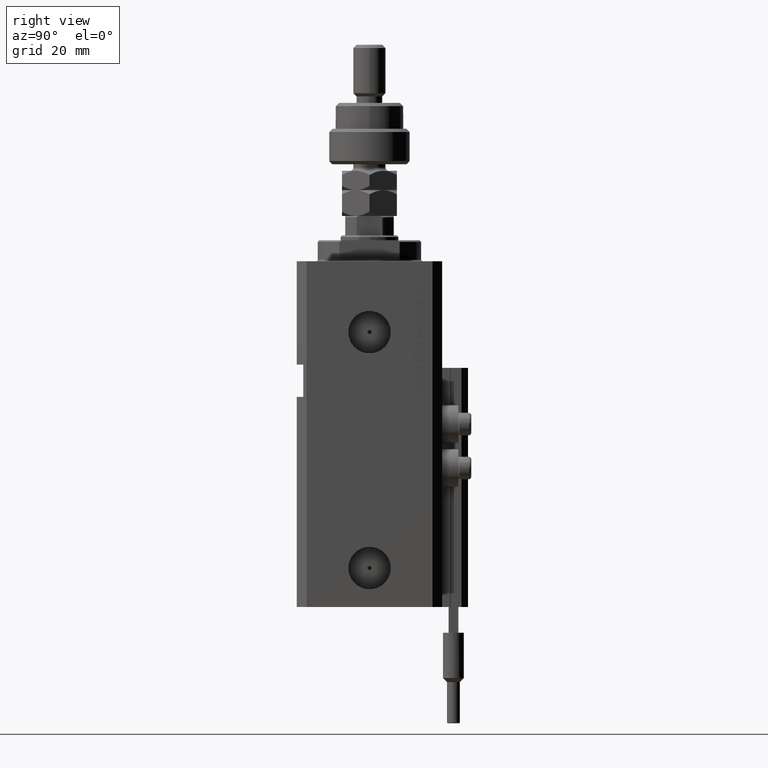
[diagram: clean part render]
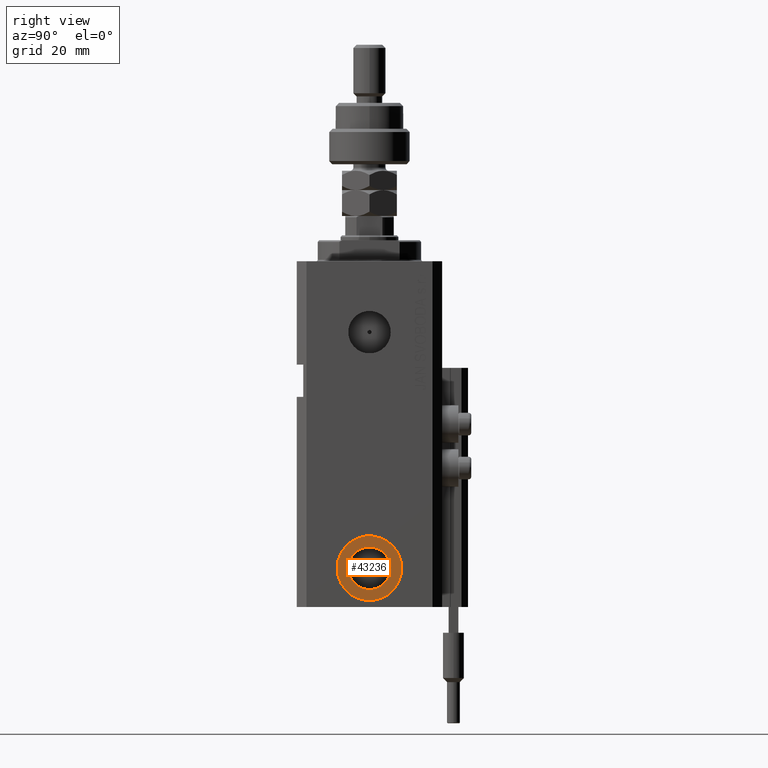
[diagram: same view with one face highlighted and labeled with its STEP entity id]
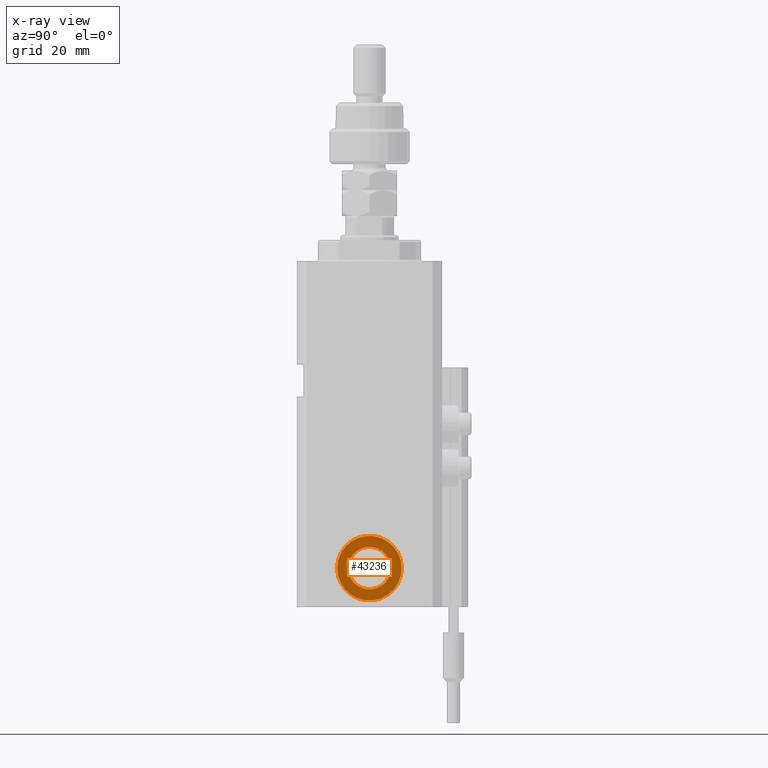
[diagram: x-ray of the same camera — body ghosted, the highlighted face saturated]
A machine part, right view. The second image highlights one B-rep face of the part: STEP entity #43236.
The next image is the same camera in x-ray: the body ghosted, the highlighted face saturated — about 0% of this face is hidden behind the body in this view.
In plain terms, the highlighted planar face has unit normal (1, -0, 0).
Its self-contained STEP definition (entity closure, byte-faithful):
#1415 = FACE_OUTER_BOUND ( 'NONE', #5132, .T. ) ;
#3527 = EDGE_CURVE ( 'NONE', #32868, #19565, #32128, .T. ) ;
#5132 = EDGE_LOOP ( 'NONE', ( #47285, #39374 ) ) ;
#5645 = CARTESIAN_POINT ( 'NONE',  ( 32.39999999999663771, -10.00000000000042633, -95.00000000000000000 ) ) ;
#5894 = AXIS2_PLACEMENT_3D ( 'NONE', #25555, #25298, #28967 ) ;
#6310 = DIRECTION ( 'NONE',  ( 1.000000000000000000, -1.334402673828349134E-14, 0.000000000000000000 ) ) ;
#7219 = CARTESIAN_POINT ( 'NONE',  ( 32.39999999999686509, 6.579999999999555982, -95.00000000000000000 ) ) ;
#7274 = EDGE_CURVE ( 'NONE', #45373, #46119, #46291, .T. ) ;
#9697 = DIRECTION ( 'NONE',  ( 1.318389841742374023E-14, 1.000000000000000000, 0.000000000000000000 ) ) ;
#9812 = CARTESIAN_POINT ( 'NONE',  ( 32.39999999999677271, -4.323464663203420381E-13, -95.00000000000000000 ) ) ;
#10070 = DIRECTION ( 'NONE',  ( 1.000000000000000000, -1.334402673828349134E-14, 0.000000000000000000 ) ) ;
#13362 = PLANE ( 'NONE',  #5894 ) ;
#14176 = AXIS2_PLACEMENT_3D ( 'NONE', #44148, #44655, #36358 ) ;
#15070 = CIRCLE ( 'NONE', #19223, 9.999999999999994671 ) ;
#17254 = EDGE_LOOP ( 'NONE', ( #50016, #38821 ) ) ;
#18013 = EDGE_CURVE ( 'NONE', #46119, #45373, #15070, .T. ) ;
#19223 = AXIS2_PLACEMENT_3D ( 'NONE', #37488, #6310, #9697 ) ;
#19565 = VERTEX_POINT ( 'NONE', #40416 ) ;
#25298 = DIRECTION ( 'NONE',  ( 1.000000000000000000, -1.334402673828349134E-14, 0.000000000000000000 ) ) ;
#25555 = CARTESIAN_POINT ( 'NONE',  ( 32.39999999999677271, -4.323464663203420381E-13, -95.00000000000000000 ) ) ;
#25787 = CARTESIAN_POINT ( 'NONE',  ( 32.39999999999677271, -4.323464663203420381E-13, -95.00000000000000000 ) ) ;
#28967 = DIRECTION ( 'NONE',  ( 1.334402673828349134E-14, 1.000000000000000000, 0.000000000000000000 ) ) ;
#32128 = CIRCLE ( 'NONE', #42032, 6.579999999999987637 ) ;
#32868 = VERTEX_POINT ( 'NONE', #7219 ) ;
#33847 = DIRECTION ( 'NONE',  ( 1.370906090437600963E-14, 1.000000000000000000, 0.000000000000000000 ) ) ;
#36358 = DIRECTION ( 'NONE',  ( 1.370906090437600963E-14, 1.000000000000000000, 0.000000000000000000 ) ) ;
#36369 = AXIS2_PLACEMENT_3D ( 'NONE', #9812, #10070, #49306 ) ;
#36998 = FACE_BOUND ( 'NONE', #17254, .T. ) ;
#37488 = CARTESIAN_POINT ( 'NONE',  ( 32.39999999999677271, -4.323464663203420381E-13, -95.00000000000000000 ) ) ;
#38821 = ORIENTED_EDGE ( 'NONE', *, *, #42301, .F. ) ;
#39374 = ORIENTED_EDGE ( 'NONE', *, *, #7274, .T. ) ;
#39873 = CIRCLE ( 'NONE', #14176, 6.579999999999987637 ) ;
#40174 = DIRECTION ( 'NONE',  ( 1.000000000000000000, -1.334402673828349134E-14, 0.000000000000000000 ) ) ;
#40416 = CARTESIAN_POINT ( 'NONE',  ( 32.39999999999668034, -6.580000000000419291, -95.00000000000000000 ) ) ;
#42032 = AXIS2_PLACEMENT_3D ( 'NONE', #25787, #40174, #33847 ) ;
#42301 = EDGE_CURVE ( 'NONE', #19565, #32868, #39873, .T. ) ;
#43236 = ADVANCED_FACE ( 'NONE', ( #36998, #1415 ), #13362, .T. ) ;
#44148 = CARTESIAN_POINT ( 'NONE',  ( 32.39999999999677271, -4.323464663203420381E-13, -95.00000000000000000 ) ) ;
#44655 = DIRECTION ( 'NONE',  ( 1.000000000000000000, -1.334402673828349134E-14, 0.000000000000000000 ) ) ;
#45373 = VERTEX_POINT ( 'NONE', #5645 ) ;
#46119 = VERTEX_POINT ( 'NONE', #48615 ) ;
#46291 = CIRCLE ( 'NONE', #36369, 9.999999999999994671 ) ;
#47285 = ORIENTED_EDGE ( 'NONE', *, *, #18013, .T. ) ;
#48615 = CARTESIAN_POINT ( 'NONE',  ( 32.39999999999690061, 9.999999999999563016, -95.00000000000000000 ) ) ;
#49306 = DIRECTION ( 'NONE',  ( 1.318389841742374023E-14, 1.000000000000000000, 0.000000000000000000 ) ) ;
#50016 = ORIENTED_EDGE ( 'NONE', *, *, #3527, .F. ) ;